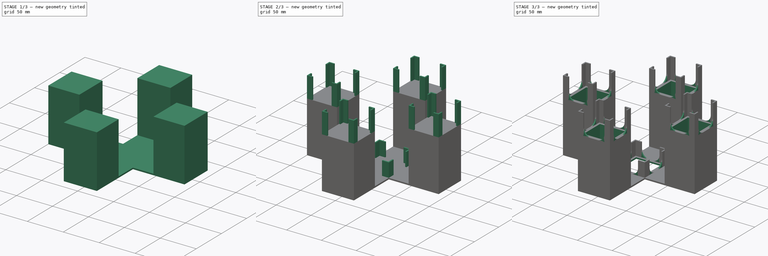
[diagram: build sequence overview — one tinted view per stage of 3, left to right]
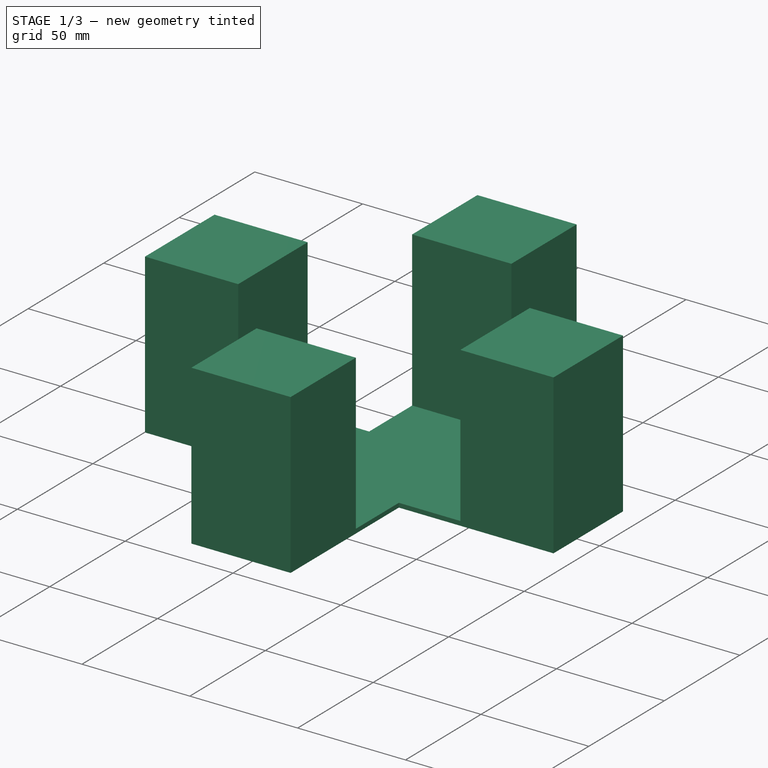
[diagram: stage 1 of 3 — iso view after this stage's code; geometry added in this stage tinted green]
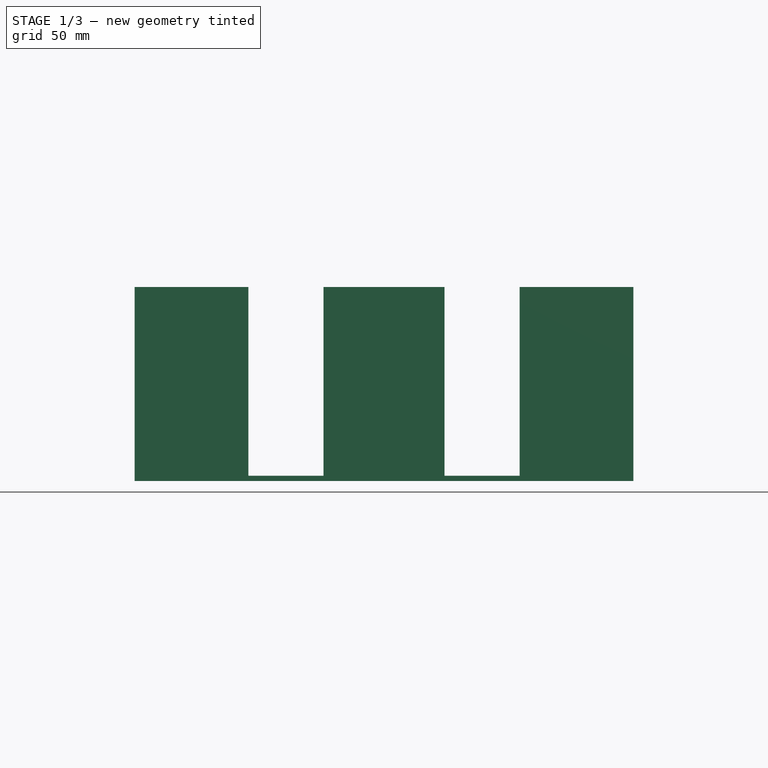
[diagram: stage 1 of 3 — front view after this stage's code; geometry added in this stage tinted green]
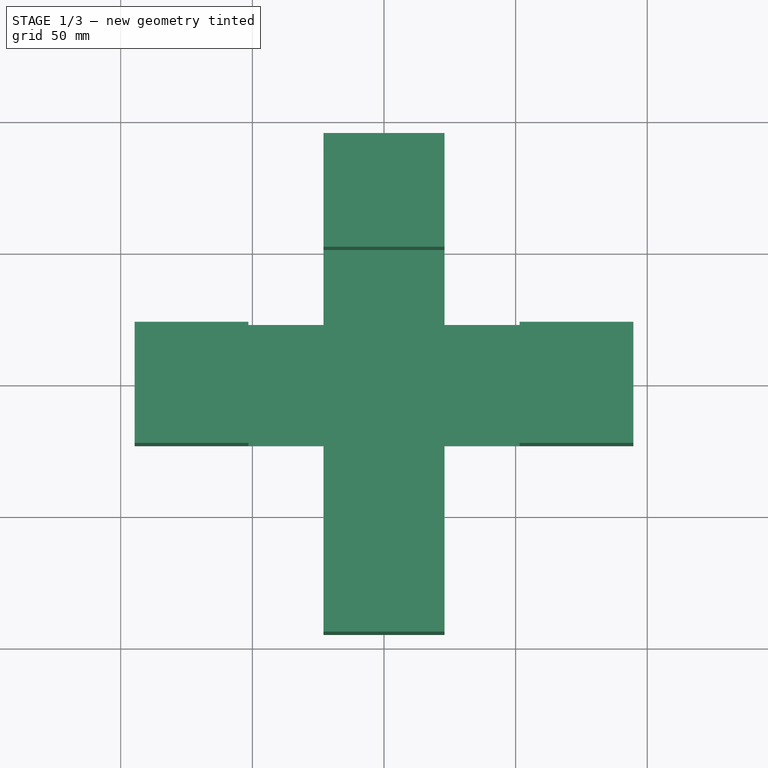
[diagram: stage 1 of 3 — top view after this stage's code; geometry added in this stage tinted green]
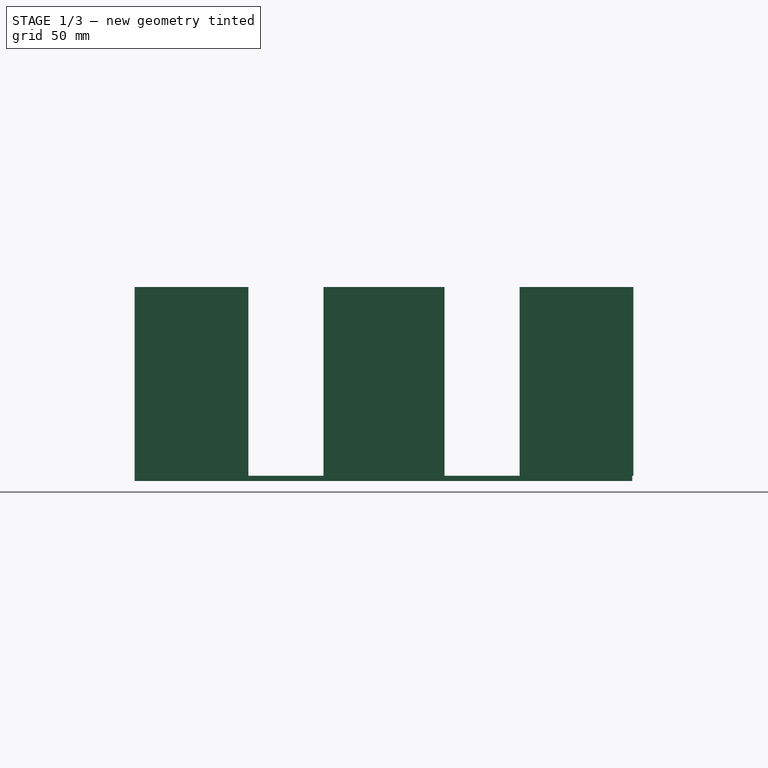
[diagram: stage 1 of 3 — right view after this stage's code; geometry added in this stage tinted green]
FCSTD DOCUMENT  (FreeCAD 0.15R4671 (Git))
Label: Five Motor Frame
License: All rights reserved
LicenseURL: http://en.wikipedia.org/wiki/All_rights_reserved
objects: Sketcher::SketchObject×5, PartDesign::Pad×4, PartDesign::Pocket×1, PartDesign::Fillet×1
note: 16 computed .brp shape members not serialized (recipe doc carries the construction recipe); baked Part::Feature solids carry a one-line shape summary decoded from their .brp

FEATURE [Sketcher::SketchObject] Sketch
  sketch-geometry (24):
    g0: LineSegment [constr] StartX=-51.5 StartY=51.5 StartZ=0 EndX=51.5 EndY=51.5 EndZ=0
    g1: LineSegment [constr] StartX=51.5 StartY=51.5 StartZ=0 EndX=51.5 EndY=-51.5 EndZ=0
    g2: LineSegment [constr] StartX=51.5 StartY=-51.5 StartZ=0 EndX=-51.5 EndY=-51.5 EndZ=0
    g3: LineSegment [constr] StartX=-51.5 StartY=-51.5 StartZ=0 EndX=-51.5 EndY=51.5 EndZ=0
    g4: LineSegment StartX=-51.5 StartY=23 StartZ=0 EndX=-94.7 EndY=23 EndZ=0
    g5: LineSegment StartX=-94.7 StartY=23 StartZ=0 EndX=-94.7 EndY=-23 EndZ=0
    g6: LineSegment StartX=-94.7 StartY=-23 StartZ=0 EndX=-51.5 EndY=-23 EndZ=0
    g7: LineSegment StartX=51.5 StartY=23 StartZ=0 EndX=94.7 EndY=23 EndZ=0
    g8: LineSegment StartX=94.7 StartY=23 StartZ=0 EndX=94.7 EndY=-23 EndZ=0
    g9: LineSegment StartX=94.7 StartY=-23 StartZ=0 EndX=51.5 EndY=-23 EndZ=0
    g10: LineSegment StartX=-23 StartY=51.0986 StartZ=0 EndX=-23 EndY=94.2986 EndZ=0
    g11: LineSegment StartX=-23 StartY=94.2986 StartZ=0 EndX=23 EndY=94.2986 EndZ=0
    g12: LineSegment StartX=23 StartY=94.2986 StartZ=0 EndX=23 EndY=51.5 EndZ=0
    g13: LineSegment StartX=23 StartY=-51.5 StartZ=0 EndX=23 EndY=-94.7 EndZ=0
    g14: LineSegment StartX=23 StartY=-94.7 StartZ=0 EndX=-23 EndY=-94.7 EndZ=0
    g15: LineSegment StartX=-23 StartY=-94.7 StartZ=0 EndX=-23 EndY=-51.5 EndZ=0
    g16: LineSegment StartX=-51.5 StartY=23 StartZ=0 EndX=-23 EndY=23 EndZ=0
    g17: LineSegment StartX=-23 StartY=23 StartZ=0 EndX=-23 EndY=51.0986 EndZ=0
    g18: LineSegment StartX=23 StartY=51.5 StartZ=0 EndX=23 EndY=23 EndZ=0
    g19: LineSegment StartX=23 StartY=23 StartZ=0 EndX=51.5 EndY=23 EndZ=0
    g20: LineSegment StartX=51.5 StartY=-23 StartZ=0 EndX=23 EndY=-23 EndZ=0
    g21: LineSegment StartX=23 StartY=-23 StartZ=0 EndX=23 EndY=-51.5 EndZ=0
    g22: LineSegment StartX=-51.5 StartY=-23 StartZ=0 EndX=-23 EndY=-23 EndZ=0
    g23: LineSegment StartX=-23 StartY=-23 StartZ=0 EndX=-23 EndY=-51.5 EndZ=0
  constraints (67):
    c: Coincident(g0,g1)
    c: Coincident(g1,g2)
    c: Coincident(g2,g3)
    c: Coincident(g3,g0)
    c: Horizontal(g0)
    c: Horizontal(g2)
    c: Vertical(g1)
    c: Vertical(g3)
    c: Distance(g0) = 103
    c: Equal(g3,g0)
    c: Symmetric(g0,g0,g-2)
    c: Symmetric(g2,g0,g-1)
    c: Coincident(g4,g5)
    c: Coincident(g5,g6)
    c: Horizontal(g4)
    c: Horizontal(g6)
    c: Vertical(g5)
    c: PointOnObject(g4,g3)
    c: Coincident(g7,g8)
    c: Coincident(g8,g9)
    c: Horizontal(g7)
    c: Horizontal(g9)
    c: Vertical(g8)
    c: PointOnObject(g7,g1)
    c: Coincident(g10,g11)
    c: Coincident(g11,g12)
    c: Horizontal(g11)
    c: Vertical(g10)
    c: Vertical(g12)
    c: PointOnObject(g12,g0)
    c: Coincident(g13,g14)
    c: Coincident(g14,g15)
    c: Horizontal(g14)
    c: Vertical(g13)
    c: Vertical(g15)
    c: PointOnObject(g15,g2)
    c: Equal(g14,g5)
    c: Equal(g5,g11)
    c: Equal(g11,g8)
    c: Symmetric(g8,g7,g-1)
    c: Symmetric(g4,g5,g-1)
    c: Symmetric(g10,g11,g-2)
    c: Symmetric(g14,g13,g-2)
    c: Equal(g4,g10)
    c: Equal(g10,g7)
    c: Equal(g7,g13)
    c: Distance(g13) = 43.2
    c: Coincident(g4,g16)
    c: Horizontal(g16)
    c: Coincident(g16,g17)
    c: Coincident(g17,g10)
    c: Vertical(g17)
    c: Coincident(g12,g18)
    c: Vertical(g18)
    c: Coincident(g18,g19)
    c: Coincident(g19,g7)
    c: Horizontal(g19)
    c: Coincident(g9,g20)
    c: Horizontal(g20)
    c: Coincident(g20,g21)
    c: Coincident(g21,g13)
    c: Vertical(g21)
    c: Coincident(g6,g22)
    c: Horizontal(g22)
    c: Coincident(g22,g23)
    c: Coincident(g23,g15)
    c: Vertical(g23)
FEATURE [PartDesign::Pad] Pad
  Length = 2
  Length2 = 100
  Sketch = -> Sketch
  Type = 0
FEATURE [Sketcher::SketchObject] Sketch001
  Placement = pos=(0,0,2) rot=(0,0,1;0rad)
  Support = -> Pad [Face22]
  sketch-geometry (20):
    g0: LineSegment [constr] StartX=-51.5 StartY=51.5 StartZ=0 EndX=51.5 EndY=51.5 EndZ=0
    g1: LineSegment [constr] StartX=51.5 StartY=51.5 StartZ=0 EndX=51.5 EndY=-51.5 EndZ=0
    g2: LineSegment [constr] StartX=51.5 StartY=-51.5 StartZ=0 EndX=-51.5 EndY=-51.5 EndZ=0
    g3: LineSegment [constr] StartX=-51.5 StartY=-51.5 StartZ=0 EndX=-51.5 EndY=51.5 EndZ=0
    g4: LineSegment StartX=-51.5 StartY=23 StartZ=0 EndX=-94.7 EndY=23 EndZ=0
    g5: LineSegment StartX=-94.7 StartY=23 StartZ=0 EndX=-94.7 EndY=-23 EndZ=0
    g6: LineSegment StartX=-94.7 StartY=-23 StartZ=0 EndX=-51.5 EndY=-23 EndZ=0
    g7: LineSegment StartX=-51.5 StartY=-23 StartZ=0 EndX=-51.5 EndY=23 EndZ=0
    g8: LineSegment StartX=51.5 StartY=23 StartZ=0 EndX=94.7 EndY=23 EndZ=0
    g9: LineSegment StartX=94.7 StartY=23 StartZ=0 EndX=94.7 EndY=-23 EndZ=0
    g10: LineSegment StartX=94.7 StartY=-23 StartZ=0 EndX=51.5 EndY=-23 EndZ=0
    g11: LineSegment StartX=51.5 StartY=-23 StartZ=0 EndX=51.5 EndY=23 EndZ=0
    g12: LineSegment StartX=23 StartY=51.5 StartZ=0 EndX=-23 EndY=51.5 EndZ=0
    g13: LineSegment StartX=-23 StartY=51.5 StartZ=0 EndX=-23 EndY=94.7 EndZ=0
    g14: LineSegment StartX=-23 StartY=94.7 StartZ=0 EndX=23 EndY=94.7 EndZ=0
    g15: LineSegment StartX=23 StartY=94.7 StartZ=0 EndX=23 EndY=51.5 EndZ=0
    g16: LineSegment StartX=-23 StartY=-51.5 StartZ=0 EndX=23 EndY=-51.5 EndZ=0
    g17: LineSegment StartX=23 StartY=-51.5 StartZ=0 EndX=23 EndY=-94.7 EndZ=0
    g18: LineSegment StartX=23 StartY=-94.7 StartZ=0 EndX=-23 EndY=-94.7 EndZ=0
    g19: LineSegment StartX=-23 StartY=-94.7 StartZ=0 EndX=-23 EndY=-51.5 EndZ=0
  constraints (60):
    c: Coincident(g0,g1)
    c: Coincident(g1,g2)
    c: Coincident(g2,g3)
    c: Coincident(g3,g0)
    c: Horizontal(g0)
    c: Horizontal(g2)
    c: Vertical(g1)
    c: Vertical(g3)
    c: Distance(g0) = 103
    c: Equal(g3,g0)
    c: Symmetric(g0,g0,g-2)
    c: Symmetric(g2,g0,g-1)
    c: Coincident(g4,g5)
    c: Coincident(g5,g6)
    c: Coincident(g6,g7)
    c: Coincident(g7,g4)
    c: Horizontal(g4)
    c: Horizontal(g6)
    c: Vertical(g5)
    c: Vertical(g7)
    c: PointOnObject(g4,g3)
    c: Coincident(g8,g9)
    c: Coincident(g9,g10)
    c: Coincident(g10,g11)
    c: Coincident(g11,g8)
    c: Horizontal(g8)
    c: Horizontal(g10)
    c: Vertical(g9)
    c: Vertical(g11)
    c: PointOnObject(g8,g1)
    c: Coincident(g12,g13)
    c: Coincident(g13,g14)
    c: Coincident(g14,g15)
    c: Coincident(g15,g12)
    c: Horizontal(g12)
    c: Horizontal(g14)
    c: Vertical(g13)
    c: Vertical(g15)
    c: PointOnObject(g12,g0)
    c: Coincident(g16,g17)
    c: Coincident(g17,g18)
    c: Coincident(g18,g19)
    c: Coincident(g19,g16)
    c: Horizontal(g16)
    c: Horizontal(g18)
    c: Vertical(g17)
    c: Vertical(g19)
    c: PointOnObject(g16,g2)
    c: Equal(g18,g5)
    c: Equal(g5,g14)
    c: Equal(g14,g9)
    c: Symmetric(g9,g8,g-1)
    c: Symmetric(g4,g5,g-1)
    c: Symmetric(g13,g14,g-2)
    c: Symmetric(g18,g17,g-2)
    c: Equal(g4,g13)
    c: Equal(g13,g8)
    c: Equal(g8,g17)
    c: Distance(g17) = 43.2
    c: Distance(g14) = 46
FEATURE [PartDesign::Pad] Pad001
  Length = 71.7
  Length2 = 100
  Sketch = -> Sketch001
  Type = 0
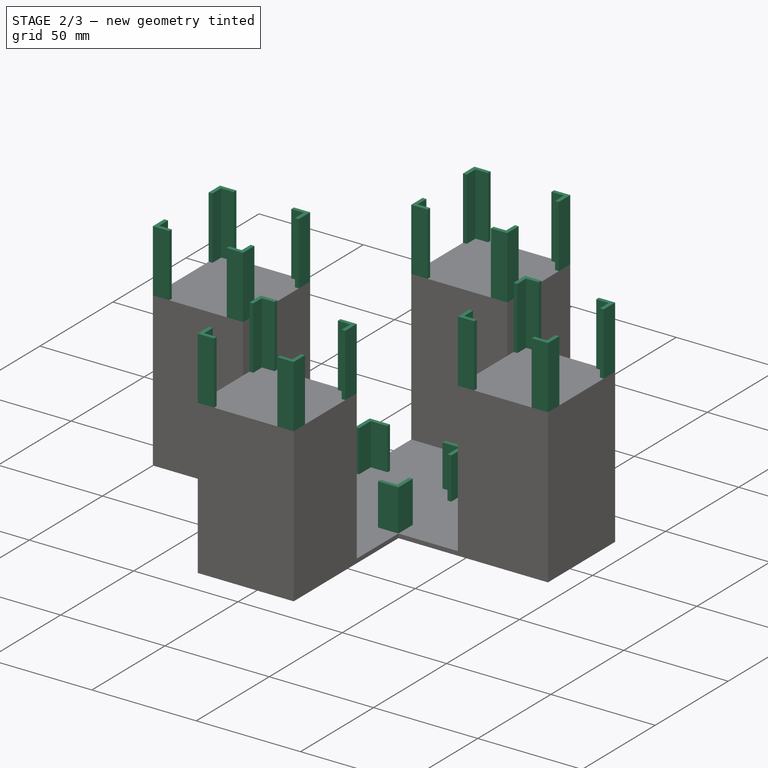
[diagram: stage 2 of 3 — iso view after this stage's code; geometry added in this stage tinted green]
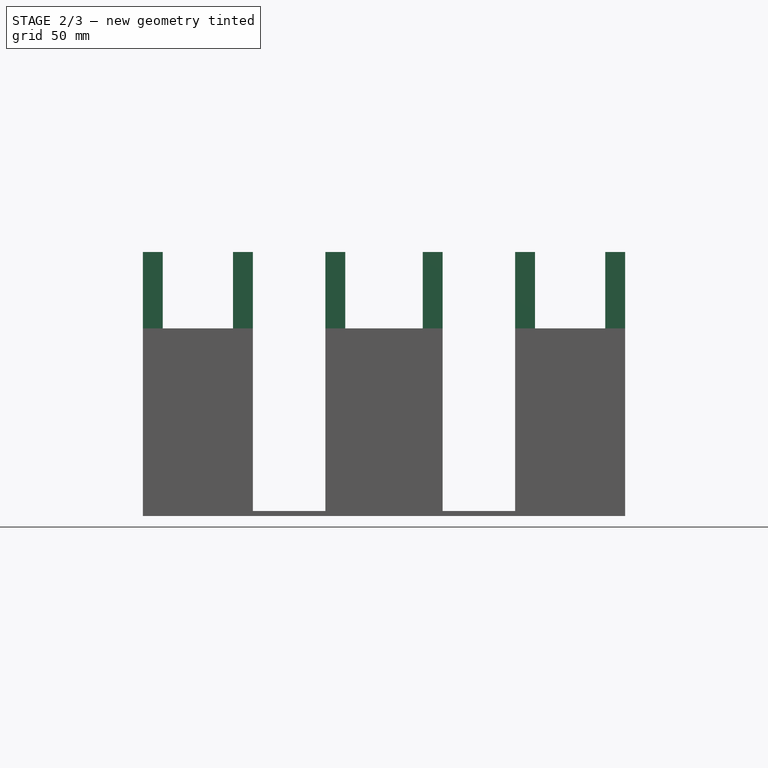
[diagram: stage 2 of 3 — front view after this stage's code; geometry added in this stage tinted green]
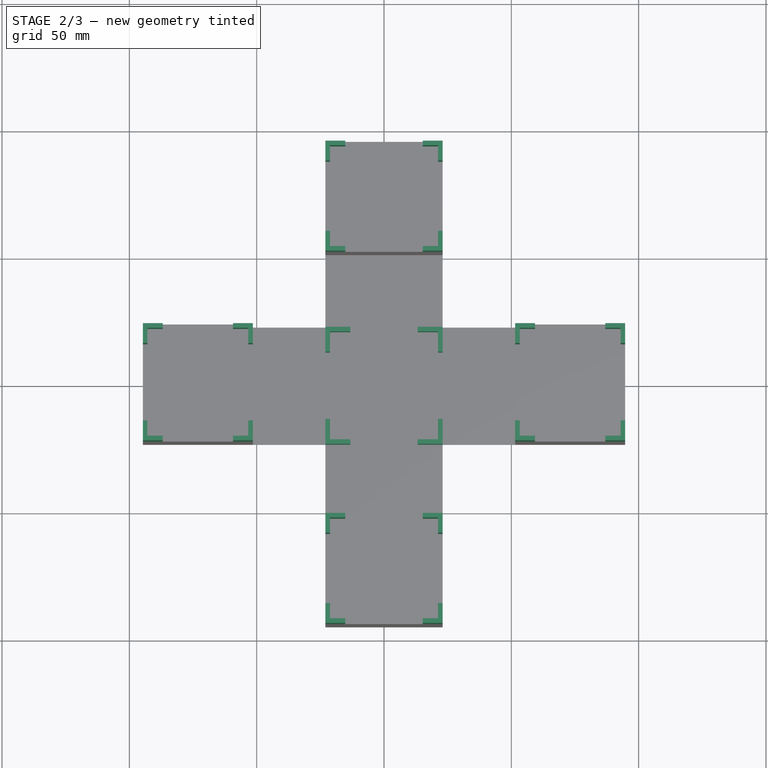
[diagram: stage 2 of 3 — top view after this stage's code; geometry added in this stage tinted green]
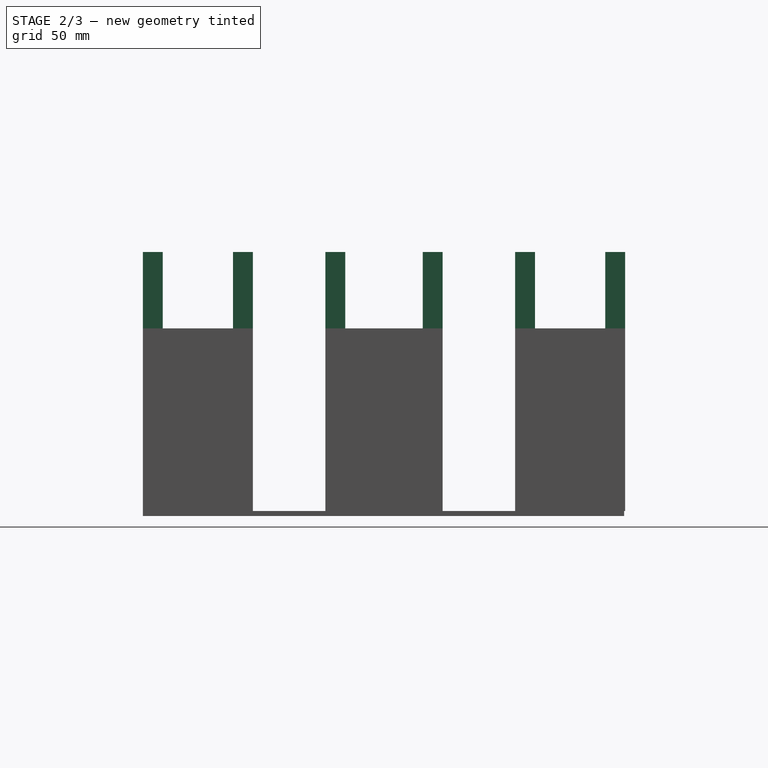
[diagram: stage 2 of 3 — right view after this stage's code; geometry added in this stage tinted green]
FEATURE [Sketcher::SketchObject] Sketch002
  Placement = pos=(0,0,2) rot=(0,0,1;0rad)
  Support = -> Pad001 [Face22]
  sketch-geometry (36):
    g0: LineSegment [constr] StartX=-51.5 StartY=51.5 StartZ=0 EndX=51.5 EndY=51.5 EndZ=0
    g1: LineSegment [constr] StartX=51.5 StartY=51.5 StartZ=0 EndX=51.5 EndY=-51.5 EndZ=0
    g2: LineSegment [constr] StartX=51.5 StartY=-51.5 StartZ=0 EndX=-51.5 EndY=-51.5 EndZ=0
    g3: LineSegment [constr] StartX=-51.5 StartY=-51.5 StartZ=0 EndX=-51.5 EndY=51.5 EndZ=0
    g4: LineSegment [constr] StartX=-23 StartY=23 StartZ=0 EndX=23 EndY=23 EndZ=0
    g5: LineSegment [constr] StartX=23 StartY=23 StartZ=0 EndX=23 EndY=-23 EndZ=0
    g6: LineSegment [constr] StartX=23 StartY=-23 StartZ=0 EndX=-23 EndY=-23 EndZ=0
    g7: LineSegment [constr] StartX=-23 StartY=-23 StartZ=0 EndX=-23 EndY=23 EndZ=0
    g8: LineSegment [constr] StartX=-21.2 StartY=21.2 StartZ=0 EndX=21.2 EndY=21.2 EndZ=0
    g9: LineSegment [constr] StartX=21.2 StartY=21.2 StartZ=0 EndX=21.2 EndY=-21.2 EndZ=0
    g10: LineSegment [constr] StartX=21.2 StartY=-21.2 StartZ=0 EndX=-21.2 EndY=-21.2 EndZ=0
    g11: LineSegment [constr] StartX=-21.2 StartY=-21.2 StartZ=0 EndX=-21.2 EndY=21.2 EndZ=0
    g12: LineSegment StartX=-23 StartY=23 StartZ=0 EndX=-23 EndY=13.2 EndZ=0
    g13: LineSegment StartX=-23 StartY=13.2 StartZ=0 EndX=-21.2 EndY=13.2 EndZ=0
    g14: LineSegment StartX=-21.2 StartY=13.2 StartZ=0 EndX=-21.2 EndY=21.2 EndZ=0
    g15: LineSegment StartX=-21.2 StartY=21.2 StartZ=0 EndX=-13.2 EndY=21.2 EndZ=0
    g16: LineSegment StartX=-13.2 StartY=21.2 StartZ=0 EndX=-13.2 EndY=23 EndZ=0
    g17: LineSegment StartX=-13.2 StartY=23 StartZ=0 EndX=-23 EndY=23 EndZ=0
    g18: LineSegment StartX=21.2 StartY=21.2 StartZ=0 EndX=13.2 EndY=21.2 EndZ=0
    g19: LineSegment StartX=13.2 StartY=21.2 StartZ=0 EndX=13.2 EndY=23 EndZ=0
    g20: LineSegment StartX=13.2 StartY=23 StartZ=0 EndX=23 EndY=23 EndZ=0
    g21: LineSegment StartX=23 StartY=23 StartZ=0 EndX=23 EndY=13.2 EndZ=0
    g22: LineSegment StartX=23 StartY=13.2 StartZ=0 EndX=21.2 EndY=13.2 EndZ=0
    g23: LineSegment StartX=21.2 StartY=13.2 StartZ=0 EndX=21.2 EndY=21.2 EndZ=0
    g24: LineSegment StartX=23 StartY=-23 StartZ=0 EndX=23 EndY=-13.2 EndZ=0
    g25: LineSegment StartX=23 StartY=-13.2 StartZ=0 EndX=21.2 EndY=-13.2 EndZ=0
    g26: LineSegment StartX=21.2 StartY=-13.2 StartZ=0 EndX=21.2 EndY=-21.2 EndZ=0
    g27: LineSegment StartX=21.2 StartY=-21.2 StartZ=0 EndX=13.2 EndY=-21.2 EndZ=0
    g28: LineSegment StartX=13.2 StartY=-21.2 StartZ=0 EndX=13.2 EndY=-23 EndZ=0
    g29: LineSegment StartX=13.2 StartY=-23 StartZ=0 EndX=23 EndY=-23 EndZ=0
    g30: LineSegment StartX=-21.2 StartY=-21.2 StartZ=0 EndX=-21.2 EndY=-13.2 EndZ=0
    g31: LineSegment StartX=-21.2 StartY=-13.2 StartZ=0 EndX=-23 EndY=-13.2 EndZ=0
    g32: LineSegment StartX=-23 StartY=-13.2 StartZ=0 EndX=-23 EndY=-23 EndZ=0
    g33: LineSegment StartX=-23 StartY=-23 StartZ=0 EndX=-13.2 EndY=-23 EndZ=0
    g34: LineSegment StartX=-13.2 StartY=-23 StartZ=0 EndX=-13.2 EndY=-21.2 EndZ=0
    g35: LineSegment StartX=-13.2 StartY=-21.2 StartZ=0 EndX=-21.2 EndY=-21.2 EndZ=0
  constraints (96):
    c: Coincident(g0,g1)
    c: Coincident(g1,g2)
    c: Coincident(g2,g3)
    c: Coincident(g3,g0)
    c: Horizontal(g0)
    c: Horizontal(g2)
    c: Vertical(g1)
    c: Vertical(g3)
    c: Distance(g0) = 103
    c: Equal(g3,g0)
    c: Symmetric(g0,g0,g-2)
    c: Symmetric(g2,g0,g-1)
    c: Coincident(g4,g5)
    c: Coincident(g5,g6)
    c: Coincident(g6,g7)
    c: Coincident(g7,g4)
    c: Symmetric(g4,g4,g-2)
    c: Symmetric(g4,g6,g-1)
    c: Equal(g4,g7)
    c: Distance(g4) = 46
    c: Coincident(g8,g9)
    c: Coincident(g9,g10)
    c: Coincident(g10,g11)
    c: Coincident(g11,g8)
    c: Symmetric(g8,g8,g-2)
    c: Symmetric(g8,g10,g-1)
    c: Equal(g11,g8)
    c: Distance(g8) = 42.4
    c: Coincident(g4,g12)
    c: PointOnObject(g12,g7)
    c: Coincident(g12,g13)
    c: PointOnObject(g13,g11)
    c: Horizontal(g13)
    c: Coincident(g13,g14)
    c: Coincident(g14,g8)
    c: Coincident(g14,g15)
    c: PointOnObject(g15,g8)
    c: Coincident(g15,g16)
    c: PointOnObject(g16,g4)
    c: Vertical(g16)
    c: Coincident(g16,g17)
    c: Coincident(g17,g12)
    c: Coincident(g8,g18)
    c: PointOnObject(g18,g8)
    c: Coincident(g18,g19)
    c: PointOnObject(g19,g4)
    c: Coincident(g19,g20)
    c: Coincident(g20,g4)
    c: Coincident(g20,g21)
    c: PointOnObject(g21,g5)
    c: Vertical(g21)
    c: Coincident(g21,g22)
    c: PointOnObject(g22,g9)
    c: Coincident(g22,g23)
    c: Coincident(g23,g18)
    c: Vertical(g23)
    c: Coincident(g5,g24)
    c: PointOnObject(g24,g5)
    c: Coincident(g24,g25)
    c: PointOnObject(g25,g9)
    c: Horizontal(g25)
    c: Coincident(g25,g26)
    c: Coincident(g26,g9)
    c: Coincident(g26,g27)
    c: PointOnObject(g27,g10)
    c: Horizontal(g27)
    c: Coincident(g27,g28)
    c: PointOnObject(g28,g6)
    c: Vertical(g28)
    c: Coincident(g28,g29)
    c: Coincident(g29,g24)
    c: Horizontal(g29)
    c: Coincident(g10,g30)
    c: PointOnObject(g30,g11)
    c: Coincident(g30,g31)
    c: PointOnObject(g31,g7)
    c: Coincident(g31,g32)
    c: Coincident(g32,g6)
    c: Coincident(g32,g33)
    c: PointOnObject(g33,g6)
    c: Coincident(g33,g34)
    c: PointOnObject(g34,g10)
    c: Vertical(g34)
    c: Coincident(g34,g35)
    c: Coincident(g35,g30)
    c: Horizontal(g31)
    c: Horizontal(g22)
    c: Equal(g14,g15)
    c: Equal(g15,g18)
    c: Equal(g18,g23)
    c: Equal(g23,g26)
    c: Equal(g26,g27)
    c: Equal(g27,g30)
    c: Equal(g30,g35)
    c: Vertical(g19)
    c: Distance(g35) = 8
FEATURE [PartDesign::Pad] Pad002
  Length = 20
  Length2 = 100
  Sketch = -> Sketch002
  Type = 0
FEATURE [Sketcher::SketchObject] Sketch003
  ExternalGeometry = -> [Pad002]
  Placement = pos=(0,0,73.7) rot=(0,0,1;0rad)
  Support = -> Pad002 [Face63]
  sketch-geometry (96):
    g0: LineSegment StartX=-94.7 StartY=23 StartZ=0 EndX=-94.7 EndY=15.2 EndZ=0
    g1: LineSegment StartX=-94.7 StartY=15.2 StartZ=0 EndX=-92.9 EndY=15.2 EndZ=0
    g2: LineSegment StartX=-92.9 StartY=15.2 StartZ=0 EndX=-92.9 EndY=21.2 EndZ=0
    g3: LineSegment StartX=-92.9 StartY=21.2 StartZ=0 EndX=-86.9 EndY=21.2 EndZ=0
    g4: LineSegment StartX=-86.9 StartY=21.2 StartZ=0 EndX=-86.9 EndY=23 EndZ=0
    g5: LineSegment StartX=-86.9 StartY=23 StartZ=0 EndX=-94.7 EndY=23 EndZ=0
    g6: LineSegment StartX=-51.5 StartY=23 StartZ=0 EndX=-59.3 EndY=23 EndZ=0
    g7: LineSegment StartX=-59.3 StartY=23 StartZ=0 EndX=-59.3 EndY=21.2 EndZ=0
    g8: LineSegment StartX=-59.3 StartY=21.2 StartZ=0 EndX=-53.3 EndY=21.2 EndZ=0
    g9: LineSegment StartX=-53.3 StartY=21.2 StartZ=0 EndX=-53.3 EndY=15.2 EndZ=0
    g10: LineSegment StartX=-53.3 StartY=15.2 StartZ=0 EndX=-51.5 EndY=15.2 EndZ=0
    g11: LineSegment StartX=-51.5 StartY=15.2 StartZ=0 EndX=-51.5 EndY=23 EndZ=0
    g12: LineSegment StartX=-92.9 StartY=-15.2 StartZ=0 EndX=-92.9 EndY=-21.2 EndZ=0
    g13: LineSegment StartX=-92.9 StartY=-21.2 StartZ=0 EndX=-86.9 EndY=-21.2 EndZ=0
    g14: LineSegment StartX=-86.9 StartY=-21.2 StartZ=0 EndX=-86.9 EndY=-23 EndZ=0
    g15: LineSegment StartX=-86.9 StartY=-23 StartZ=0 EndX=-94.7 EndY=-23 EndZ=0
    g16: LineSegment StartX=-94.7 StartY=-23 StartZ=0 EndX=-94.7 EndY=-15.2 EndZ=0
    g17: LineSegment StartX=-94.7 StartY=-15.2 StartZ=0 EndX=-92.9 EndY=-15.2 EndZ=0
    g18: LineSegment StartX=-51.5 StartY=-23 StartZ=0 EndX=-51.5 EndY=-15.2 EndZ=0
    g19: LineSegment StartX=-51.5 StartY=-15.2 StartZ=0 EndX=-53.3 EndY=-15.2 EndZ=0
    g20: LineSegment StartX=-53.3 StartY=-15.2 StartZ=0 EndX=-53.3 EndY=-21.2 EndZ=0
    g21: LineSegment StartX=-53.3 StartY=-21.2 StartZ=0 EndX=-59.3 EndY=-21.2 EndZ=0
    g22: LineSegment StartX=-59.3 StartY=-21.2 StartZ=0 EndX=-59.3 EndY=-23 EndZ=0
    g23: LineSegment StartX=-59.3 StartY=-23 StartZ=0 EndX=-51.5 EndY=-23 EndZ=0
    g24: LineSegment StartX=-23 StartY=-59.3 StartZ=0 EndX=-23 EndY=-51.5 EndZ=0
    g25: LineSegment StartX=-23 StartY=-51.5 StartZ=0 EndX=-15.2 EndY=-51.5 EndZ=0
    g26: LineSegment StartX=-15.2 StartY=-51.5 StartZ=0 EndX=-15.2 EndY=-53.3 EndZ=0
    g27: LineSegment StartX=-15.2 StartY=-53.3 StartZ=0 EndX=-21.2 EndY=-53.3 EndZ=0
    g28: LineSegment StartX=-21.2 StartY=-53.3 StartZ=0 EndX=-21.2 EndY=-59.3 EndZ=0
    g29: LineSegment StartX=-21.2 StartY=-59.3 StartZ=0 EndX=-23 EndY=-59.3 EndZ=0
    g30: LineSegment StartX=-23 StartY=-94.7 StartZ=0 EndX=-23 EndY=-86.9 EndZ=0
    g31: LineSegment StartX=-23 StartY=-86.9 StartZ=0 EndX=-21.2 EndY=-86.9 EndZ=0
    g32: LineSegment StartX=-21.2 StartY=-86.9 StartZ=0 EndX=-21.2 EndY=-92.9 EndZ=0
    g33: LineSegment StartX=-21.2 StartY=-92.9 StartZ=0 EndX=-15.2 EndY=-92.9 EndZ=0
    g34: LineSegment StartX=-15.2 StartY=-92.9 StartZ=0 EndX=-15.2 EndY=-94.7 EndZ=0
    g35: LineSegment StartX=-15.2 StartY=-94.7 StartZ=0 EndX=-23 EndY=-94.7 EndZ=0
    g36: LineSegment StartX=15.2 StartY=-51.5 StartZ=0 EndX=23 EndY=-51.5 EndZ=0
    g37: LineSegment StartX=23 StartY=-51.5 StartZ=0 EndX=23 EndY=-59.3 EndZ=0
    g38: LineSegment StartX=23 StartY=-59.3 StartZ=0 EndX=21.2 EndY=-59.3 EndZ=0
    g39: LineSegment StartX=21.2 StartY=-59.3 StartZ=0 EndX=21.2 EndY=-53.3 EndZ=0
    g40: LineSegment StartX=21.2 StartY=-53.3 StartZ=0 EndX=15.2 EndY=-53.3 EndZ=0
    g41: LineSegment StartX=15.2 StartY=-53.3 StartZ=0 EndX=15.2 EndY=-51.5 EndZ=0
    g42: LineSegment StartX=23 StartY=-94.7 StartZ=0 EndX=15.2 EndY=-94.7 EndZ=0
    g43: LineSegment StartX=15.2 StartY=-94.7 StartZ=0 EndX=15.2 EndY=-92.9 EndZ=0
    g44: LineSegment StartX=15.2 StartY=-92.9 StartZ=0 EndX=21.2 EndY=-92.9 EndZ=0
    g45: LineSegment StartX=21.2 StartY=-92.9 StartZ=0 EndX=21.2 EndY=-86.9 EndZ=0
    g46: LineSegment StartX=21.2 StartY=-86.9 StartZ=0 EndX=23 EndY=-86.9 EndZ=0
    g47: LineSegment StartX=23 StartY=-86.9 StartZ=0 EndX=23 EndY=-94.7 EndZ=0
    g48: LineSegment StartX=51.5 StartY=23 StartZ=0 EndX=51.5 EndY=15.2 EndZ=0
    g49: LineSegment StartX=51.5 StartY=15.2 StartZ=0 EndX=53.3 EndY=15.2 EndZ=0
    g50: LineSegment StartX=53.3 StartY=15.2 StartZ=0 EndX=53.3 EndY=21.2 EndZ=0
    g51: LineSegment StartX=53.3 StartY=21.2 StartZ=0 EndX=59.3 EndY=21.2 EndZ=0
    g52: LineSegment StartX=59.3 StartY=21.2 StartZ=0 EndX=59.3 EndY=23 EndZ=0
    g53: LineSegment StartX=59.3 StartY=23 StartZ=0 EndX=51.5 EndY=23 EndZ=0
    g54: LineSegment StartX=94.7 StartY=23 StartZ=0 EndX=86.9 EndY=23 EndZ=0
    g55: LineSegment StartX=86.9 StartY=23 StartZ=0 EndX=86.9 EndY=21.2 EndZ=0
    g56: LineSegment StartX=86.9 StartY=21.2 StartZ=0 EndX=92.9 EndY=21.2 EndZ=0
    g57: LineSegment StartX=92.9 StartY=21.2 StartZ=0 EndX=92.9 EndY=15.2 EndZ=0
    g58: LineSegment StartX=92.9 StartY=15.2 StartZ=0 EndX=94.7 EndY=15.2 EndZ=0
    g59: LineSegment StartX=94.7 StartY=15.2 StartZ=0 EndX=94.7 EndY=23 EndZ=0
    g60: LineSegment StartX=51.5 StartY=-23 StartZ=0 EndX=51.5 EndY=-15.2 EndZ=0
    g61: LineSegment StartX=51.5 StartY=-15.2 StartZ=0 EndX=53.3 EndY=-15.2 EndZ=0
    g62: LineSegment StartX=53.3 StartY=-15.2 StartZ=0 EndX=53.3 EndY=-21.2 EndZ=0
    g63: LineSegment StartX=53.3 StartY=-21.2 StartZ=0 EndX=59.3 EndY=-21.2 EndZ=0
    g64: LineSegment StartX=59.3 StartY=-21.2 StartZ=0 EndX=59.3 EndY=-23 EndZ=0
    g65: LineSegment StartX=59.3 StartY=-23 StartZ=0 EndX=51.5 EndY=-23 EndZ=0
    g66: LineSegment StartX=94.7 StartY=-23 StartZ=0 EndX=86.9 EndY=-23 EndZ=0
    g67: LineSegment StartX=86.9 StartY=-23 StartZ=0 EndX=86.9 EndY=-21.2 EndZ=0
    g68: LineSegment StartX=86.9 StartY=-21.2 StartZ=0 EndX=92.9 EndY=-21.2 EndZ=0
    g69: LineSegment StartX=92.9 StartY=-21.2 StartZ=0 EndX=92.9 EndY=-15.2 EndZ=0
    g70: LineSegment StartX=92.9 StartY=-15.2 StartZ=0 EndX=94.7 EndY=-15.2 EndZ=0
    g71: LineSegment StartX=94.7 StartY=-15.2 StartZ=0 EndX=94.7 EndY=-23 EndZ=0
    g72: LineSegment StartX=-23 StartY=51.5 StartZ=0 EndX=-23 EndY=59.3 EndZ=0
    g73: LineSegment StartX=-23 StartY=59.3 StartZ=0 EndX=-21.2 EndY=59.3 EndZ=0
    g74: LineSegment StartX=-21.2 StartY=59.3 StartZ=0 EndX=-21.2 EndY=53.3 EndZ=0
    g75: LineSegment StartX=-21.2 StartY=53.3 StartZ=0 EndX=-15.2 EndY=53.3 EndZ=0
    g76: LineSegment StartX=-15.2 StartY=53.3 StartZ=0 EndX=-15.2 EndY=51.5 EndZ=0
    g77: LineSegment StartX=-15.2 StartY=51.5 StartZ=0 EndX=-23 EndY=51.5 EndZ=0
    g78: LineSegment StartX=15.2 StartY=51.5 StartZ=0 EndX=15.2 EndY=53.3 EndZ=0
    g79: LineSegment StartX=15.2 StartY=53.3 StartZ=0 EndX=21.2 EndY=53.3 EndZ=0
    g80: LineSegment StartX=21.2 StartY=53.3 StartZ=0 EndX=21.2 EndY=59.3 EndZ=0
    g81: LineSegment StartX=21.2 StartY=59.3 StartZ=0 EndX=23 EndY=59.3 EndZ=0
    g82: LineSegment StartX=23 StartY=59.3 StartZ=0 EndX=23 EndY=51.5 EndZ=0
    g83: LineSegment StartX=23 StartY=51.5 StartZ=0 EndX=15.2 EndY=51.5 EndZ=0
    g84: LineSegment StartX=15.2 StartY=94.7 StartZ=0 EndX=23 EndY=94.7 EndZ=0
    g85: LineSegment StartX=23 StartY=94.7 StartZ=0 EndX=23 EndY=86.9 EndZ=0
    g86: LineSegment StartX=23 StartY=86.9 StartZ=0 EndX=21.2 EndY=86.9 EndZ=0
    g87: LineSegment StartX=21.2 StartY=86.9 StartZ=0 EndX=21.2 EndY=92.9 EndZ=0
    g88: LineSegment StartX=21.2 StartY=92.9 StartZ=0 EndX=15.2 EndY=92.9 EndZ=0
    g89: LineSegment StartX=15.2 StartY=92.9 StartZ=0 EndX=15.2 EndY=94.7 EndZ=0
    g90: LineSegment StartX=-15.2 StartY=94.7 StartZ=0 EndX=-15.2 EndY=92.9 EndZ=0
    g91: LineSegment StartX=-15.2 StartY=92.9 StartZ=0 EndX=-21.2 EndY=92.9 EndZ=0
    g92: LineSegment StartX=-21.2 StartY=92.9 StartZ=0 EndX=-21.2 EndY=86.9 EndZ=0
    g93: LineSegment StartX=-21.2 StartY=86.9 StartZ=0 EndX=-23 EndY=86.9 EndZ=0
    g94: LineSegment StartX=-23 StartY=86.9 StartZ=0 EndX=-23 EndY=94.7 EndZ=0
    g95: LineSegment StartX=-23 StartY=94.7 StartZ=0 EndX=-15.2 EndY=94.7 EndZ=0
  constraints (272):
    c: Coincident(g-9,g0)
    c: Vertical(g0)
    c: Coincident(g0,g1)
    c: Coincident(g1,g2)
    c: Vertical(g2)
    c: Coincident(g2,g3)
    c: Horizontal(g3)
    c: Coincident(g3,g4)
    c: Vertical(g4)
    c: Coincident(g4,g5)
    c: Coincident(g5,g0)
    c: Horizontal(g5)
    c: Coincident(g-9,g6)
    c: Coincident(g6,g7)
    c: Vertical(g7)
    c: Coincident(g7,g8)
    c: Horizontal(g8)
    c: Coincident(g8,g9)
    c: Vertical(g9)
    c: Coincident(g9,g10)
    c: Horizontal(g10)
    c: Coincident(g10,g11)
    c: Coincident(g11,g6)
    c: Vertical(g11)
    c: Horizontal(g1)
    c: Vertical(g12)
    c: Coincident(g12,g13)
    c: Horizontal(g13)
    c: Coincident(g13,g14)
    c: PointOnObject(g14,g-7)
    c: Vertical(g14)
    c: Coincident(g14,g15)
    c: Coincident(g15,g-8)
    c: Coincident(g15,g16)
    c: PointOnObject(g16,g-8)
    c: Coincident(g16,g17)
    c: Coincident(g17,g12)
    c: Horizontal(g17)
    c: Coincident(g-7,g18)
    c: PointOnObject(g18,g-3)
    c: Coincident(g18,g19)
    c: Horizontal(g19)
    c: Coincident(g19,g20)
    c: Vertical(g20)
    c: Coincident(g20,g21)
    c: Coincident(g21,g22)
    c: PointOnObject(g22,g-7)
    c: Vertical(g22)
    c: Coincident(g22,g23)
    c: Coincident(g23,g18)
    c: Horizontal(g21)
    c: PointOnObject(g24,g-18)
    c: Coincident(g24,g-18)
    c: Coincident(g24,g25)
    c: PointOnObject(g25,g-6)
    c: Coincident(g25,g26)
    c: Coincident(g26,g27)
    c: Horizontal(g27)
    c: Coincident(g27,g28)
    c: Vertical(g28)
    c: Coincident(g28,g29)
    c: Coincident(g29,g24)
    c: Horizontal(g29)
    c: Coincident(g-18,g30)
    c: PointOnObject(g30,g-18)
    c: Coincident(g30,g31)
    c: Horizontal(g31)
    c: Coincident(g31,g32)
    c: Vertical(g32)
    c: Coincident(g32,g33)
    c: Horizontal(g33)
    c: Coincident(g33,g34)
    c: PointOnObject(g34,g-17)
    c: Vertical(g34)
    c: Coincident(g34,g35)
    c: Coincident(g35,g30)
    c: Coincident(g36,g-16)
    c: Horizontal(g36)
    c: Coincident(g36,g37)
    c: PointOnObject(g37,g-16)
    c: Coincident(g37,g38)
    c: Coincident(g38,g39)
    c: Vertical(g39)
    c: Coincident(g39,g40)
    c: Horizontal(g40)
    c: Coincident(g40,g41)
    c: Coincident(g41,g36)
    c: Vertical(g41)
    c: Horizontal(g38)
    c: Coincident(g-17,g42)
    c: PointOnObject(g42,g-17)
    c: Coincident(g42,g43)
    c: Coincident(g43,g44)
    c: Horizontal(g44)
    c: Coincident(g44,g45)
    c: Vertical(g45)
    c: Coincident(g45,g46)
    c: PointOnObject(g46,g-16)
    c: Horizontal(g46)
    c: Coincident(g46,g47)
    c: Coincident(g47,g42)
    c: Vertical(g43)
    c: Coincident(g-13,g48)
    c: PointOnObject(g48,g-4)
    c: Coincident(g48,g49)
    c: Horizontal(g49)
    c: Coincident(g49,g50)
    c: Vertical(g50)
    c: Coincident(g50,g51)
    c: Horizontal(g51)
    c: Coincident(g51,g52)
    c: PointOnObject(g52,g-13)
    c: Vertical(g52)
    c: Coincident(g52,g53)
    c: Coincident(g53,g48)
    c: Coincident(g-14,g54)
    c: PointOnObject(g54,g-13)
    c: Coincident(g54,g55)
    c: Vertical(g55)
    c: Coincident(g55,g56)
    c: Horizontal(g56)
    c: Coincident(g56,g57)
    c: Vertical(g57)
    c: Coincident(g57,g58)
    c: PointOnObject(g58,g-14)
    c: Horizontal(g58)
    c: Coincident(g58,g59)
    c: Coincident(g59,g54)
    c: Coincident(g-15,g60)
    c: PointOnObject(g60,g-4)
    c: Coincident(g60,g61)
    c: Horizontal(g61)
    c: Coincident(g61,g62)
    c: Vertical(g62)
    c: Coincident(g62,g63)
    c: Horizontal(g63)
    c: Coincident(g63,g64)
    c: PointOnObject(g64,g-15)
    c: Vertical(g64)
    c: Coincident(g64,g65)
    c: Coincident(g65,g60)
    c: Coincident(g-15,g66)
    c: PointOnObject(g66,g-15)
    c: Coincident(g66,g67)
    c: Coincident(g67,g68)
    c: Horizontal(g68)
    c: Coincident(g68,g69)
    c: Vertical(g69)
    c: Coincident(g69,g70)
    c: PointOnObject(g70,g-14)
    c: Horizontal(g70)
    c: Coincident(g70,g71)
    c: Coincident(g71,g66)
    c: Coincident(g-10,g72)
    c: PointOnObject(g72,g-10)
    c: Coincident(g72,g73)
    c: Coincident(g73,g74)
    c: Vertical(g74)
    c: Coincident(g74,g75)
    c: Horizontal(g75)
    c: Coincident(g75,g76)
    c: PointOnObject(g76,g-5)
    c: Vertical(g76)
    c: Coincident(g76,g77)
    c: Coincident(g77,g72)
    c: Vertical(g78)
    c: Coincident(g78,g79)
    c: Horizontal(g79)
    c: Coincident(g79,g80)
    c: Vertical(g80)
    c: Coincident(g80,g81)
    c: PointOnObject(g81,g-12)
    c: Horizontal(g81)
    c: Coincident(g81,g82)
    c: Coincident(g82,g-12)
    c: Coincident(g82,g83)
    c: Coincident(g83,g78)
    c: Horizontal(g83)
    c: PointOnObject(g84,g-11)
    c: Coincident(g84,g-12)
    c: Coincident(g84,g85)
    c: PointOnObject(g85,g-12)
    c: Coincident(g85,g86)
    c: Horizontal(g86)
    c: Coincident(g86,g87)
    c: Coincident(g87,g88)
    c: Coincident(g88,g89)
    c: Coincident(g89,g84)
    c: Horizontal(g88)
    c: Vertical(g87)
    c: PointOnObject(g90,g-11)
    c: Coincident(g90,g91)
    c: Coincident(g91,g92)
    c: Vertical(g92)
    c: Coincident(g92,g93)
    c: PointOnObject(g93,g-10)
    c: Horizontal(g93)
    c: Coincident(g93,g94)
    c: Coincident(g94,g-11)
    c: Coincident(g94,g95)
    c: Coincident(g95,g90)
    c: Horizontal(g91)
    c: Vertical(g90)
    c: Symmetric(g74,g79,g-2)
    c: Equal(g76,g73)
    c: Equal(g73,g93)
    c: Equal(g93,g90)
    c: Equal(g90,g89)
    c: Equal(g89,g86)
    c: Equal(g86,g81)
    c: Equal(g81,g78)
    c: Equal(g78,g49)
    c: Equal(g49,g52)
    c: Equal(g52,g55)
    c: Equal(g55,g58)
    c: Equal(g58,g70)
    c: Equal(g70,g67)
    c: Equal(g67,g64)
    c: Equal(g64,g61)
    c: Equal(g61,g43)
    c: Equal(g43,g46)
    c: Equal(g46,g38)
    c: Equal(g38,g41)
    c: Equal(g41,g26)
    c: Equal(g26,g29)
    c: Equal(g29,g31)
    c: Equal(g31,g34)
    c: Equal(g34,g14)
    c: Equal(g14,g17)
    c: Equal(g17,g22)
    c: Equal(g22,g19)
    c: Equal(g19,g10)
    c: Equal(g10,g7)
    c: Equal(g7,g4)
    c: Equal(g4,g1)
    c: PointOnObject(g6,g-9)
    c: Distance(g1) = 1.8
    c: Equal(g56,g57)
    c: Equal(g57,g51)
    c: Equal(g51,g50)
    c: Equal(g50,g62)
    c: Equal(g62,g63)
    c: Equal(g63,g68)
    c: Equal(g68,g69)
    c: Equal(g69,g92)
    c: Equal(g92,g91)
    c: Equal(g91,g88)
    c: Equal(g88,g87)
    c: Equal(g87,g80)
    c: Equal(g80,g79)
    c: Equal(g79,g75)
    c: Equal(g75,g74)
    c: Equal(g74,g8)
    c: Equal(g8,g9)
    c: Equal(g9,g3)
    c: Equal(g3,g2)
    c: Equal(g2,g12)
    c: Equal(g12,g13)
    c: Equal(g13,g21)
    c: Equal(g21,g20)
    c: Equal(g20,g40)
    c: Equal(g40,g39)
    c: Equal(g39,g45)
    c: Equal(g45,g44)
    c: Equal(g44,g33)
    c: Equal(g33,g32)
    c: Equal(g32,g28)
    c: Equal(g28,g27)
    c: Distance(g3) = 6
    c: Vertical(g26)
    c: Vertical(g67)
    c: Vertical(g89)
FEATURE [PartDesign::Pad] Pad003
  Length = 30
  Length2 = 100
  Sketch = -> Sketch003
  Type = 0
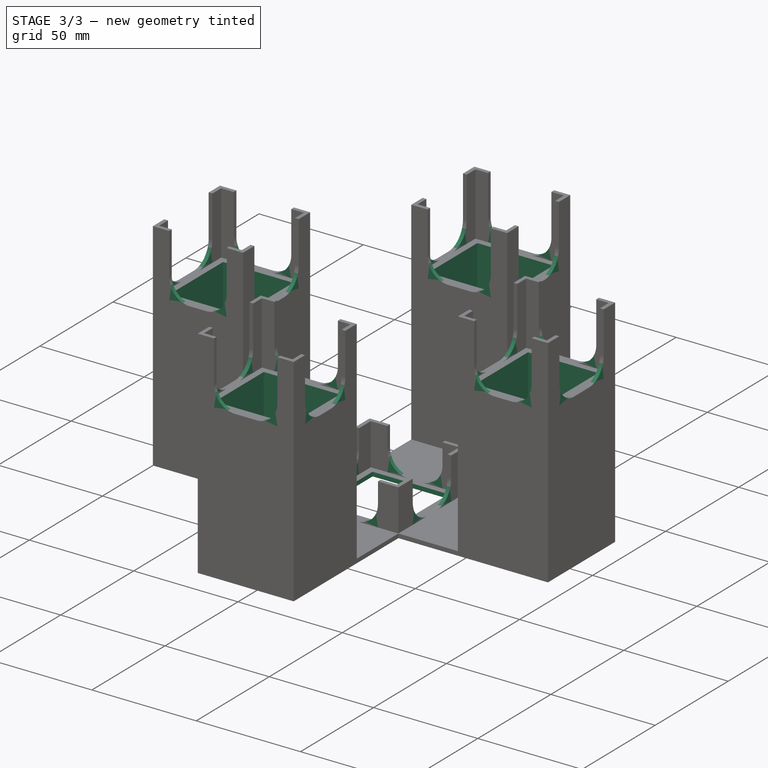
[diagram: stage 3 of 3 — iso view after this stage's code; geometry added in this stage tinted green]
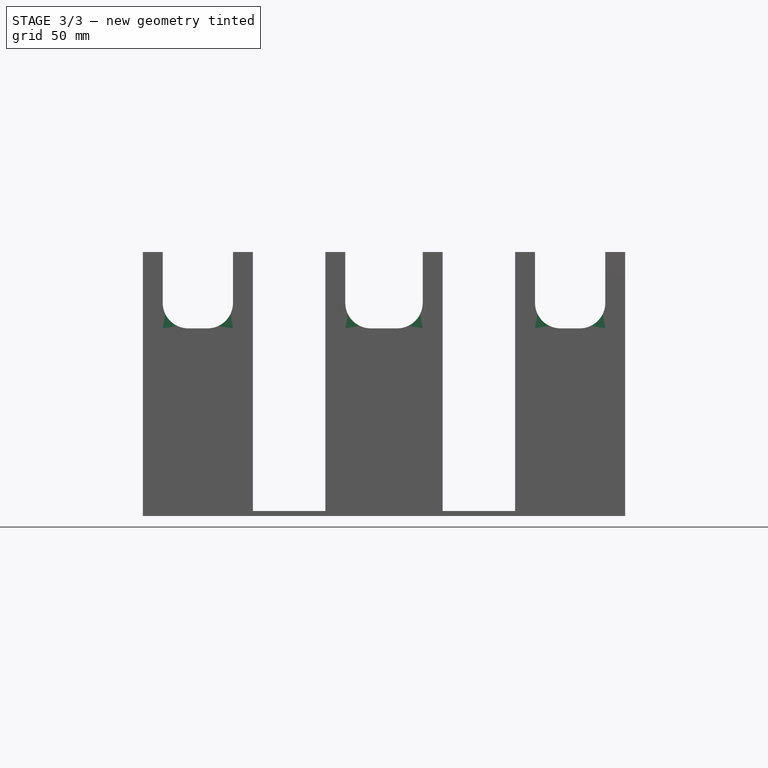
[diagram: stage 3 of 3 — front view after this stage's code; geometry added in this stage tinted green]
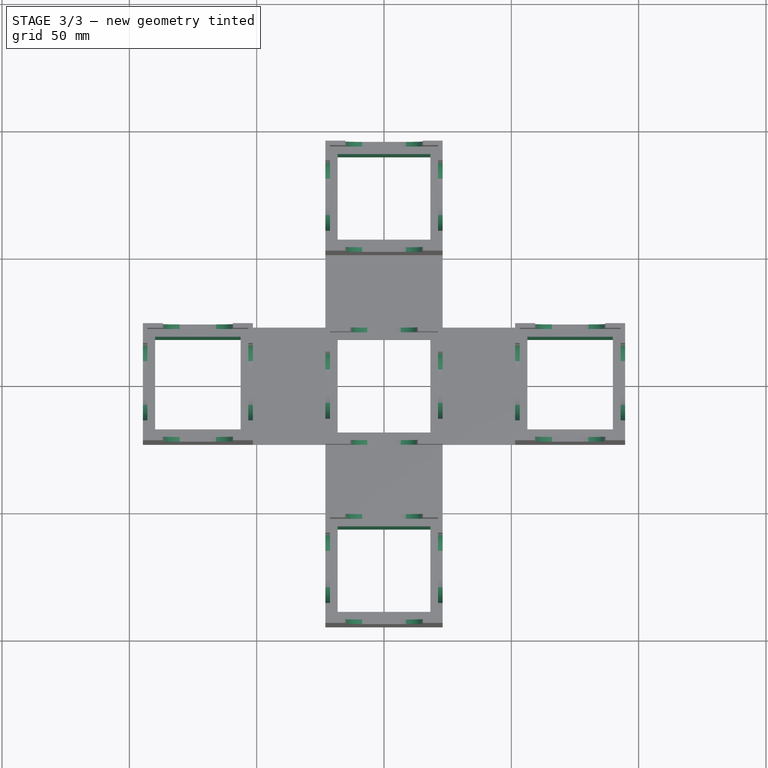
[diagram: stage 3 of 3 — top view after this stage's code; geometry added in this stage tinted green]
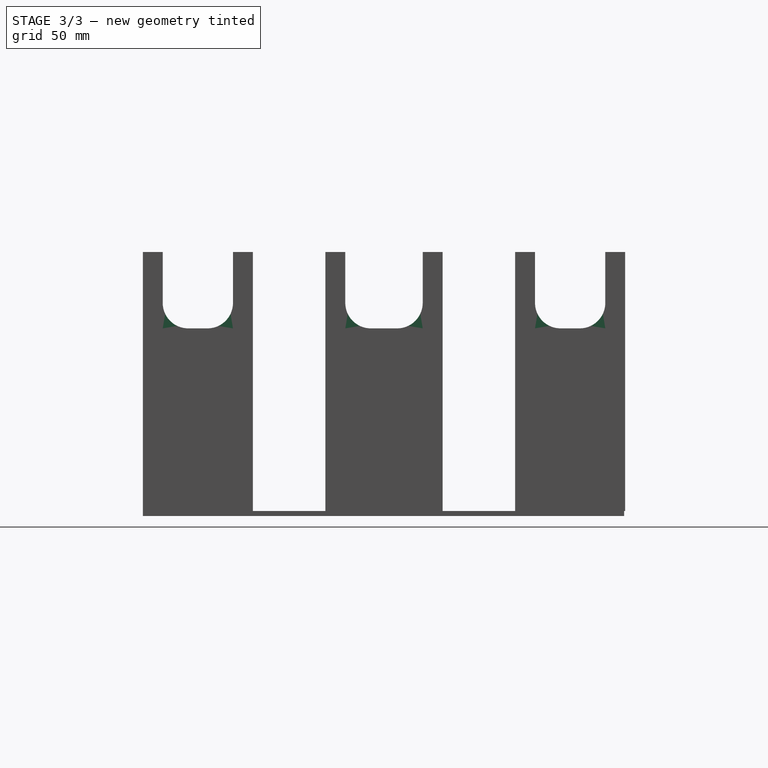
[diagram: stage 3 of 3 — right view after this stage's code; geometry added in this stage tinted green]
FEATURE [Sketcher::SketchObject] Sketch004
  ExternalGeometry = -> [Pad003]
  Placement = pos=(0,0,0) rot=(1,0,0;3.14159rad)
  Support = -> Pad003 [Face1]
  sketch-geometry (20):
    g0: LineSegment StartX=-18.2 StartY=89.9 StartZ=0 EndX=18.2 EndY=89.9 EndZ=0
    g1: LineSegment StartX=18.2 StartY=89.9 StartZ=0 EndX=18.2 EndY=56.3 EndZ=0
    g2: LineSegment StartX=18.2 StartY=56.3 StartZ=0 EndX=-18.2 EndY=56.3 EndZ=0
    g3: LineSegment StartX=-18.2 StartY=56.3 StartZ=0 EndX=-18.2 EndY=89.9 EndZ=0
    g4: LineSegment StartX=-18.2 StartY=-56.3 StartZ=0 EndX=18.2 EndY=-56.3 EndZ=0
    g5: LineSegment StartX=18.2 StartY=-56.3 StartZ=0 EndX=18.2 EndY=-89.9 EndZ=0
    g6: LineSegment StartX=18.2 StartY=-89.9 StartZ=0 EndX=-18.2 EndY=-89.9 EndZ=0
    g7: LineSegment StartX=-18.2 StartY=-89.9 StartZ=0 EndX=-18.2 EndY=-56.3 EndZ=0
    g8: LineSegment StartX=-89.9 StartY=18.2 StartZ=0 EndX=-56.3 EndY=18.2 EndZ=0
    g9: LineSegment StartX=-56.3 StartY=18.2 StartZ=0 EndX=-56.3 EndY=-18.2 EndZ=0
    g10: LineSegment StartX=-56.3 StartY=-18.2 StartZ=0 EndX=-89.9 EndY=-18.2 EndZ=0
    g11: LineSegment StartX=-89.9 StartY=-18.2 StartZ=0 EndX=-89.9 EndY=18.2 EndZ=0
    g12: LineSegment StartX=56.3 StartY=18.2 StartZ=0 EndX=89.9 EndY=18.2 EndZ=0
    g13: LineSegment StartX=89.9 StartY=18.2 StartZ=0 EndX=89.9 EndY=-18.2 EndZ=0
    g14: LineSegment StartX=89.9 StartY=-18.2 StartZ=0 EndX=56.3 EndY=-18.2 EndZ=0
    g15: LineSegment StartX=56.3 StartY=-18.2 StartZ=0 EndX=56.3 EndY=18.2 EndZ=0
    g16: LineSegment StartX=-18.2 StartY=18.2 StartZ=0 EndX=18.2 EndY=18.2 EndZ=0
    g17: LineSegment StartX=18.2 StartY=18.2 StartZ=0 EndX=18.2 EndY=-18.2 EndZ=0
    g18: LineSegment StartX=18.2 StartY=-18.2 StartZ=0 EndX=-18.2 EndY=-18.2 EndZ=0
    g19: LineSegment StartX=-18.2 StartY=-18.2 StartZ=0 EndX=-18.2 EndY=18.2 EndZ=0
  constraints (60):
    c: Coincident(g0,g1)
    c: Coincident(g1,g2)
    c: Coincident(g2,g3)
    c: Coincident(g3,g0)
    c: Horizontal(g0)
    c: Horizontal(g2)
    c: Vertical(g1)
    c: Vertical(g3)
    c: Coincident(g4,g5)
    c: Coincident(g5,g6)
    c: Coincident(g6,g7)
    c: Coincident(g7,g4)
    c: Horizontal(g4)
    c: Horizontal(g6)
    c: Vertical(g5)
    c: Vertical(g7)
    c: Coincident(g8,g9)
    c: Coincident(g9,g10)
    c: Coincident(g10,g11)
    c: Coincident(g11,g8)
    c: Horizontal(g8)
    c: Horizontal(g10)
    c: Vertical(g9)
    c: Vertical(g11)
    c: Coincident(g12,g13)
    c: Coincident(g13,g14)
    c: Coincident(g14,g15)
    c: Coincident(g15,g12)
    c: Horizontal(g12)
    c: Horizontal(g14)
    c: Vertical(g13)
    c: Vertical(g15)
    c: Coincident(g16,g17)
    c: Coincident(g17,g18)
    c: Coincident(g18,g19)
    c: Coincident(g19,g16)
    c: Horizontal(g16)
    c: Horizontal(g18)
    c: Vertical(g17)
    c: Vertical(g19)
    c: Symmetric(g12,g14,g-1)
    c: Symmetric(g9,g8,g-1)
    c: Symmetric(g2,g1,g-2)
    c: Symmetric(g16,g16,g-2)
    c: Symmetric(g4,g4,g-2)
    c: Symmetric(g16,g17,g-1)
    c: Symmetric(g8,g12,g-2)
    c: Symmetric(g1,g4,g-1)
    c: Equal(g18,g17)
    c: Equal(g17,g15)
    c: Equal(g15,g2)
    c: Equal(g2,g9)
    c: Equal(g9,g4)
    c: Equal(g10,g7)
    c: Equal(g7,g14)
    c: Equal(g14,g1)
    c: DistanceX(g8,g-40) = -3
    c: DistanceX(g8,g-37) = 3
    c: DistanceY(g8,g-40) = 3
    c: DistanceY(g6,g-26) = -3
FEATURE [PartDesign::Pocket] Pocket
  Length = 5
  Sketch = -> Sketch004
  Type = 1
FEATURE [PartDesign::Fillet] Fillet
  Base = -> Pocket [Edge234,Edge220,Edge256,Edge270,Edge218,Edge203,Edge252,Edge237,Edge226,Edge227,Edge247,Edge246,Edge263,Edge264,Edge211,Edge212,Edge269,Edge255,Edge253,Edge238,Edge221,Edge235,Edge202,Edge217,Edge229,Edge228,Edge208,Edge209,Edge262,Edge261,Edge243,Edge244,Edge130,Edge127,Edge136,Edge145,Edge133,Edge148,Edge139,Edge142]
  Radius = 10
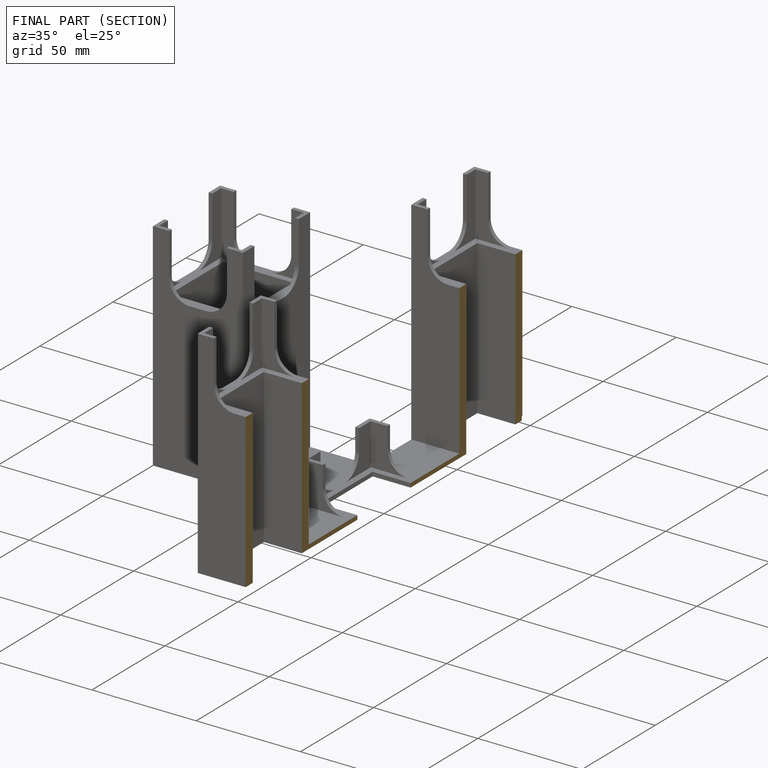
[diagram: finished part — half-section view (interior)]
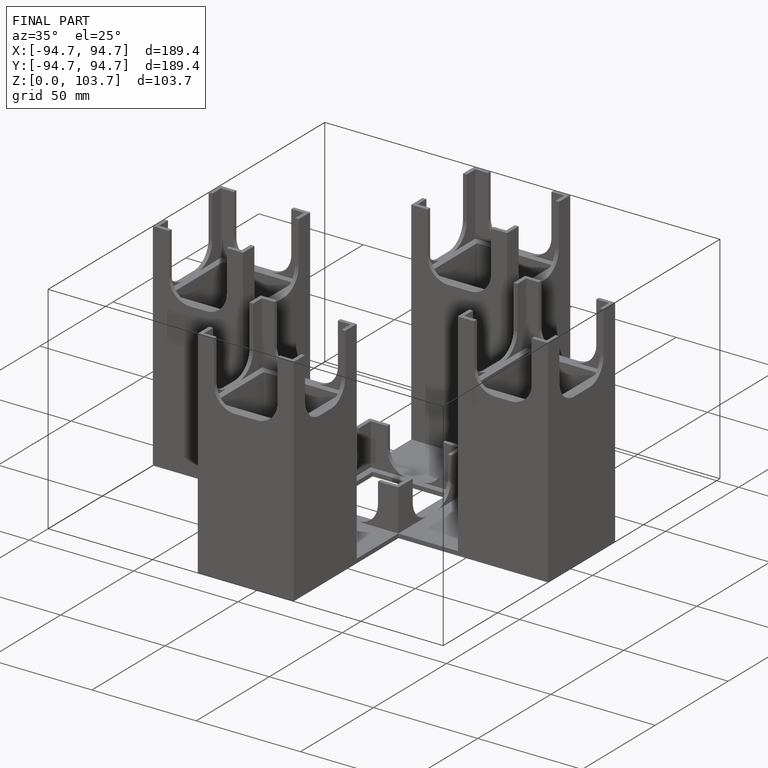
[diagram: finished part — iso view with bounding-box wireframe]
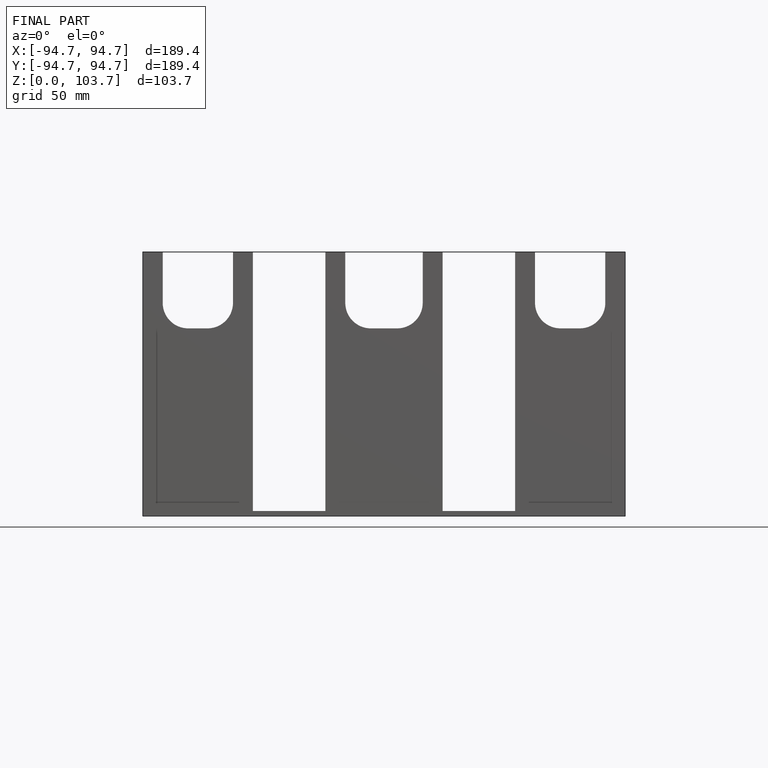
[diagram: finished part — front view with bounding-box wireframe]
